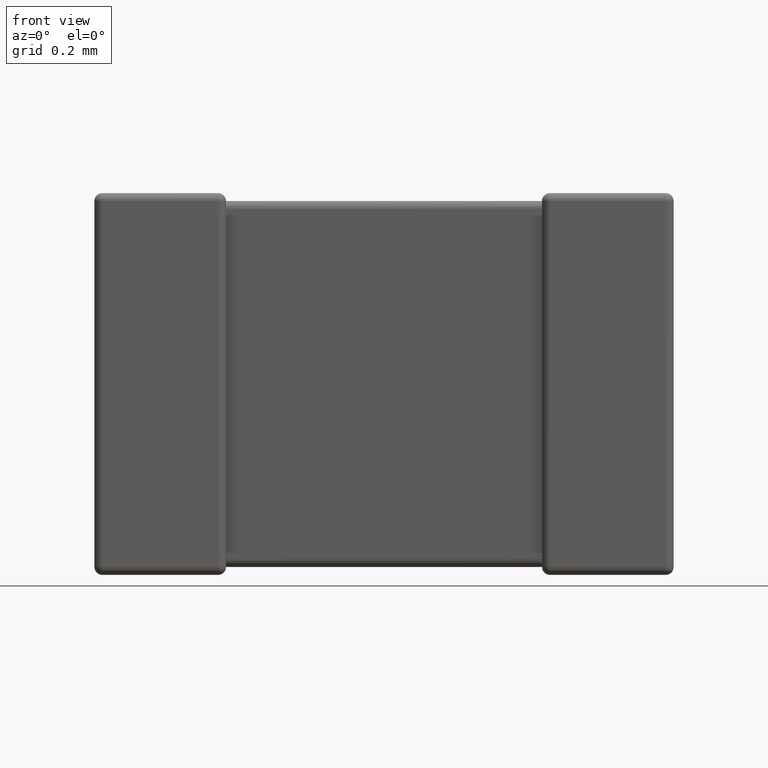
[diagram: clean part render]
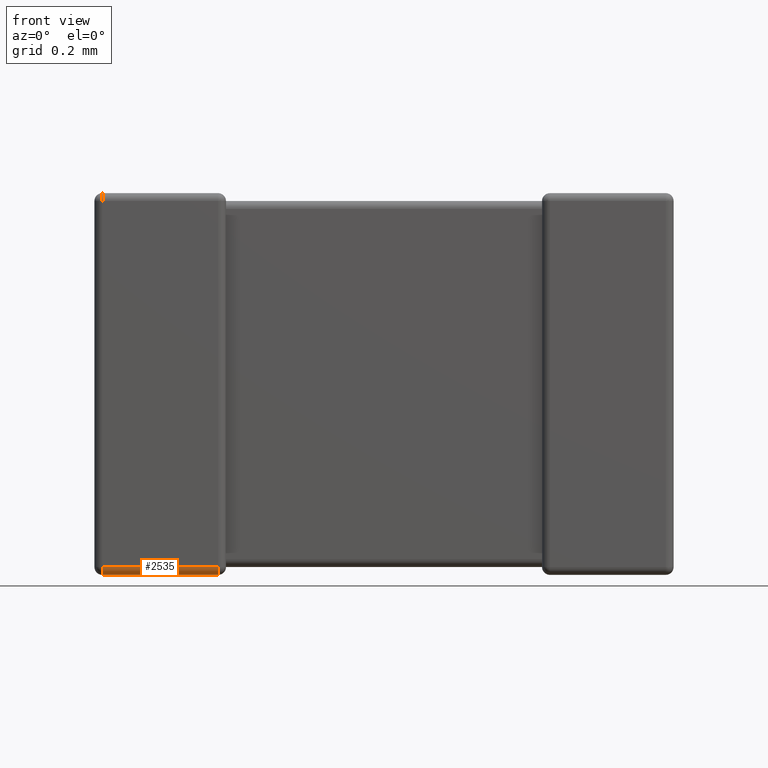
[diagram: same view with one face highlighted and labeled with its STEP entity id]
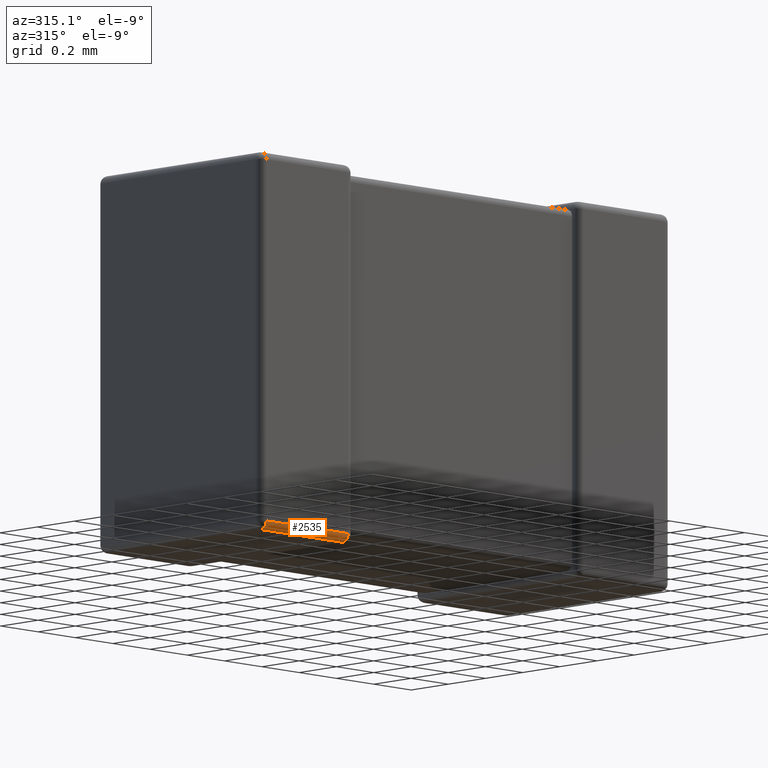
[diagram: same view with one face highlighted and labeled with its STEP entity id]
A machine part, front view. The second image highlights one B-rep face of the part: STEP entity #2535.
A second angle (auxiliary view) of the same face is appended — the face is thin or edge-on in the first view.
In plain terms, the highlighted cylindrical surface (edge-blend (fillet) strip) has radius 0.0302 mm, axis along (-1, -0, 0).
Its self-contained STEP definition (entity closure, byte-faithful):
#128 = CARTESIAN_POINT ( 'NONE',  ( 0.03015999999999999584, 0.000000000000000000, -1.419839999999999991 ) ) ;
#200 = EDGE_CURVE ( 'NONE', #2930, #4595, #2170, .T. ) ;
#615 = DIRECTION ( 'NONE',  ( 3.594834789408171311E-15, 0.000000000000000000, -1.000000000000000000 ) ) ;
#617 = CARTESIAN_POINT ( 'NONE',  ( 0.4698400000000031440, 0.03015999999999999931, -1.449999999999999956 ) ) ;
#633 = ORIENTED_EDGE ( 'NONE', *, *, #200, .F. ) ;
#1118 = ORIENTED_EDGE ( 'NONE', *, *, #3232, .T. ) ;
#1147 = VECTOR ( 'NONE', #2878, 1000.000000000000000 ) ;
#1164 = AXIS2_PLACEMENT_3D ( 'NONE', #4253, #3931, #2117 ) ;
#1257 = EDGE_LOOP ( 'NONE', ( #1118, #1499, #1936, #633 ) ) ;
#1499 = ORIENTED_EDGE ( 'NONE', *, *, #4276, .F. ) ;
#1680 = DIRECTION ( 'NONE',  ( 1.000000000000000000, 0.000000000000000000, 3.594834789408172100E-15 ) ) ;
#1782 = AXIS2_PLACEMENT_3D ( 'NONE', #3667, #2700, #2347 ) ;
#1936 = ORIENTED_EDGE ( 'NONE', *, *, #4092, .F. ) ;
#2049 = CARTESIAN_POINT ( 'NONE',  ( 0.03015999999999999584, 0.03015999999999999931, -1.449999999999999956 ) ) ;
#2067 = CARTESIAN_POINT ( 'NONE',  ( 0.4698400000000030330, 0.000000000000000000, -1.419839999999999991 ) ) ;
#2117 = DIRECTION ( 'NONE',  ( 0.000000000000000000, 0.000000000000000000, 1.000000000000000000 ) ) ;
#2170 = LINE ( 'NONE', #3935, #1147 ) ;
#2326 = VERTEX_POINT ( 'NONE', #2049 ) ;
#2347 = DIRECTION ( 'NONE',  ( 0.000000000000000000, 0.000000000000000000, 1.000000000000000000 ) ) ;
#2535 = ADVANCED_FACE ( 'NONE', ( #2898 ), #4003, .T. ) ;
#2647 = VERTEX_POINT ( 'NONE', #617 ) ;
#2700 = DIRECTION ( 'NONE',  ( 1.000000000000000000, 0.000000000000000000, 0.000000000000000000 ) ) ;
#2845 = CIRCLE ( 'NONE', #1782, 0.03015999999999999584 ) ;
#2878 = DIRECTION ( 'NONE',  ( 1.000000000000000000, 0.000000000000000000, -0.000000000000000000 ) ) ;
#2898 = FACE_OUTER_BOUND ( 'NONE', #1257, .T. ) ;
#2930 = VERTEX_POINT ( 'NONE', #128 ) ;
#3009 = AXIS2_PLACEMENT_3D ( 'NONE', #3870, #1680, #615 ) ;
#3232 = EDGE_CURVE ( 'NONE', #2930, #2326, #2845, .T. ) ;
#3329 = CARTESIAN_POINT ( 'NONE',  ( 2.200000000000000178, 0.03015999999999999931, -1.449999999999999956 ) ) ;
#3375 = DIRECTION ( 'NONE',  ( -1.000000000000000000, -0.000000000000000000, 0.000000000000000000 ) ) ;
#3667 = CARTESIAN_POINT ( 'NONE',  ( 0.03015999999999999584, 0.03015999999999999931, -1.419839999999999991 ) ) ;
#3701 = VECTOR ( 'NONE', #3375, 1000.000000000000000 ) ;
#3858 = CIRCLE ( 'NONE', #3009, 0.03015999999999999584 ) ;
#3870 = CARTESIAN_POINT ( 'NONE',  ( 0.4698400000000030330, 0.03015999999999999931, -1.419839999999999991 ) ) ;
#3931 = DIRECTION ( 'NONE',  ( -1.000000000000000000, -0.000000000000000000, 0.000000000000000000 ) ) ;
#3935 = CARTESIAN_POINT ( 'NONE',  ( 2.200000000000000178, 0.000000000000000000, -1.419839999999999991 ) ) ;
#4003 = CYLINDRICAL_SURFACE ( 'NONE', #1164, 0.03015999999999999584 ) ;
#4092 = EDGE_CURVE ( 'NONE', #4595, #2647, #3858, .T. ) ;
#4095 = LINE ( 'NONE', #3329, #3701 ) ;
#4253 = CARTESIAN_POINT ( 'NONE',  ( 2.200000000000000178, 0.03015999999999999931, -1.419839999999999991 ) ) ;
#4276 = EDGE_CURVE ( 'NONE', #2647, #2326, #4095, .T. ) ;
#4595 = VERTEX_POINT ( 'NONE', #2067 ) ;